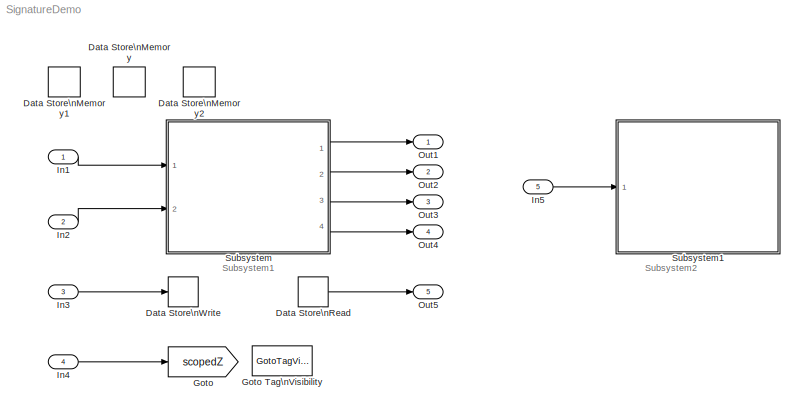
MODEL SignatureDemo
KIND model
BLOCK [DataStoreMemory] Data Store\nMemory
  DataStoreName = dsB
  ReadBeforeWriteMsg = warning
  SID = 5
  WriteAfterReadMsg = warning
  WriteAfterWriteMsg = warning
BLOCK [DataStoreMemory] Data Store\nMemory1
  DataStoreName = dsA
  ReadBeforeWriteMsg = warning
  SID = 6
  WriteAfterReadMsg = warning
  WriteAfterWriteMsg = warning
BLOCK [DataStoreMemory] Data Store\nMemory2
  DataStoreName = dsC
  ReadBeforeWriteMsg = warning
  SID = 77
  WriteAfterReadMsg = warning
  WriteAfterWriteMsg = warning
BLOCK [DataStoreRead] Data Store\nRead
  DataStoreName = dsA
  Ports = [0, 1]
  SID = 7
BLOCK [DataStoreWrite] Data Store\nWrite
  DataStoreName = dsB
  Ports = [1]
  SID = 8
BLOCK [Goto] Goto
  GotoTag = scopedZ
  SID = 9
  TagVisibility = scoped
BLOCK [GotoTagVisibility] Goto Tag\nVisibility
  GotoTag = scopedZ
  SID = 10
BLOCK [Inport] In1
  IconDisplay = Port number
  SID = 1
BLOCK [Inport] In2
  IconDisplay = Port number
  Port = 2
  SID = 2
BLOCK [Inport] In3
  IconDisplay = Port number
  Port = 3
  SID = 3
BLOCK [Inport] In4
  IconDisplay = Port number
  Port = 4
  SID = 4
BLOCK [Inport] In5
  IconDisplay = Port number
  Port = 5
  SID = 82
BLOCK [Outport] Out1
  IconDisplay = Port number
  SID = 72
BLOCK [Outport] Out2
  IconDisplay = Port number
  Port = 2
  SID = 73
BLOCK [Outport] Out3
  IconDisplay = Port number
  Port = 3
  SID = 74
BLOCK [Outport] Out4
  IconDisplay = Port number
  Port = 4
  SID = 75
BLOCK [Outport] Out5
  IconDisplay = Port number
  Port = 5
  SID = 76
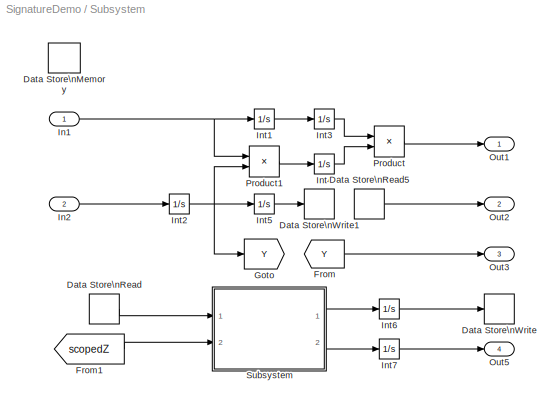
BLOCK [SubSystem] Subsystem
  FunctionWithSeparateData = off
  MaskHideContents = off
  MinAlgLoopOccurrences = off
  Opaque = off
  Ports = [2, 4]
  PropExecContextOutsideSubsystem = off
  RTWSystemCode = Auto
  RequestExecContextInheritance = off
  SID = 11
BLOCK [DataStoreMemory] Subsystem/Data Store\nMemory
  DataStoreName = dsD
  ReadBeforeWriteMsg = warning
  SID = 14
  WriteAfterReadMsg = warning
  WriteAfterWriteMsg = warning
BLOCK [DataStoreRead] Subsystem/Data Store\nRead
  DataStoreName = dsB
  Ports = [0, 1]
  SID = 15
BLOCK [DataStoreRead] Subsystem/Data Store\nRead5
  DataStoreName = dsD
  Ports = [0, 1]
  SID = 20
BLOCK [DataStoreWrite] Subsystem/Data Store\nWrite
  DataStoreName = dsA
  Ports = [1]
  SID = 21
BLOCK [DataStoreWrite] Subsystem/Data Store\nWrite1
  DataStoreName = dsD
  Ports = [1]
  SID = 22
BLOCK [From] Subsystem/From
  GotoTag = Y
  SID = 23
BLOCK [From] Subsystem/From1
  GotoTag = scopedZ
  SID = 24
BLOCK [Goto] Subsystem/Goto
  GotoTag = Y
  SID = 33
  TagVisibility = local
BLOCK [Inport] Subsystem/In1
  IconDisplay = Port number
  SID = 12
BLOCK [Inport] Subsystem/In2
  IconDisplay = Port number
  Port = 2
  SID = 13
BLOCK [Integrator] Subsystem/Int1
  Ports = [1, 1]
  SID = 40
BLOCK [Integrator] Subsystem/Int2
  Ports = [1, 1]
  SID = 41
BLOCK [Integrator] Subsystem/Int3
  Ports = [1, 1]
  SID = 42
BLOCK [Integrator] Subsystem/Int4
  Ports = [1, 1]
  SID = 43
BLOCK [Integrator] Subsystem/Int5
  Ports = [1, 1]
  SID = 44
BLOCK [Integrator] Subsystem/Int6
  Ports = [1, 1]
  SID = 45
BLOCK [Integrator] Subsystem/Int7
  Ports = [1, 1]
  SID = 46
BLOCK [Outport] Subsystem/Out1
  IconDisplay = Port number
  SID = 68
BLOCK [Outport] Subsystem/Out2
  IconDisplay = Port number
  Port = 2
  SID = 69
BLOCK [Outport] Subsystem/Out3
  IconDisplay = Port number
  Port = 3
  SID = 70
BLOCK [Outport] Subsystem/Out5
  IconDisplay = Port number
  Port = 4
  SID = 71
BLOCK [Product] Subsystem/Product
  InputSameDT = off
  OutDataTypeStr = Inherit: Inherit via internal rule
  Ports = [2, 1]
  SID = 47
  SaturateOnIntegerOverflow = off
BLOCK [Product] Subsystem/Product1
  InputSameDT = off
  OutDataTypeStr = Inherit: Inherit via internal rule
  Ports = [2, 1]
  SID = 48
  SaturateOnIntegerOverflow = off
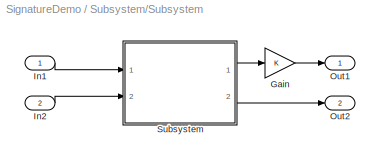
BLOCK [SubSystem] Subsystem/Subsystem
  FunctionWithSeparateData = off
  MaskHideContents = off
  MinAlgLoopOccurrences = off
  Opaque = off
  Ports = [2, 2]
  PropExecContextOutsideSubsystem = off
  RTWSystemCode = Auto
  RequestExecContextInheritance = off
  SID = 49
BLOCK [Gain] Subsystem/Subsystem/Gain
  OutDataTypeStr = Inherit: Inherit via internal rule
  ParamDataTypeStr = Inherit: Inherit via internal rule
  SID = 52
  SaturateOnIntegerOverflow = off
BLOCK [Inport] Subsystem/Subsystem/In1
  IconDisplay = Port number
  SID = 50
BLOCK [Inport] Subsystem/Subsystem/In2
  IconDisplay = Port number
  Port = 2
  SID = 51
BLOCK [Outport] Subsystem/Subsystem/Out1
  IconDisplay = Port number
  SID = 60
BLOCK [Outport] Subsystem/Subsystem/Out2
  IconDisplay = Port number
  Port = 2
  SID = 61
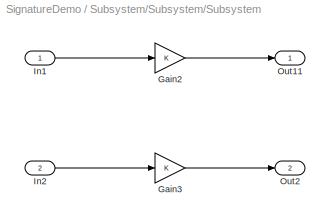
BLOCK [SubSystem] Subsystem/Subsystem/Subsystem
  FunctionWithSeparateData = off
  MaskHideContents = off
  MinAlgLoopOccurrences = off
  Opaque = off
  Ports = [2, 2]
  PropExecContextOutsideSubsystem = off
  RTWSystemCode = Auto
  RequestExecContextInheritance = off
  SID = 53
BLOCK [Gain] Subsystem/Subsystem/Subsystem/Gain2
  OutDataTypeStr = Inherit: Inherit via internal rule
  ParamDataTypeStr = Inherit: Inherit via internal rule
  SID = 56
  SaturateOnIntegerOverflow = off
BLOCK [Gain] Subsystem/Subsystem/Subsystem/Gain3
  OutDataTypeStr = Inherit: Inherit via internal rule
  ParamDataTypeStr = Inherit: Inherit via internal rule
  SID = 57
  SaturateOnIntegerOverflow = off
BLOCK [Inport] Subsystem/Subsystem/Subsystem/In1
  IconDisplay = Port number
  SID = 54
BLOCK [Inport] Subsystem/Subsystem/Subsystem/In2
  IconDisplay = Port number
  Port = 2
  SID = 55
BLOCK [Outport] Subsystem/Subsystem/Subsystem/Out11
  IconDisplay = Port number
  SID = 58
BLOCK [Outport] Subsystem/Subsystem/Subsystem/Out2
  IconDisplay = Port number
  Port = 2
  SID = 59
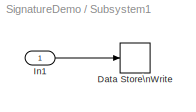
BLOCK [SubSystem] Subsystem1
  FunctionWithSeparateData = off
  MaskHideContents = off
  MinAlgLoopOccurrences = off
  Opaque = off
  Ports = [1]
  PropExecContextOutsideSubsystem = off
  RTWSystemCode = Auto
  RequestExecContextInheritance = off
  SID = 78
  ShowPortLabels = none
BLOCK [DataStoreWrite] Subsystem1/Data Store\nWrite
  DataStoreName = dsC
  Ports = [1]
  SID = 81
BLOCK [Inport] Subsystem1/In1
  IconDisplay = Port number
  SID = 79
ANNOTATION (root): Subsystem1
ANNOTATION (root): Subsystem2
LINE Data Store\nRead:1 -> Out5:1
LINE In1:1 -> Subsystem:1
LINE In2:1 -> Subsystem:2
LINE In3:1 -> Data Store\nWrite:1
LINE In4:1 -> Goto:1
LINE In5:1 -> Subsystem1:1
LINE Subsystem/Data Store\nRead5:1 -> Subsystem/Out2:1
LINE Subsystem/Data Store\nRead:1 -> Subsystem/Subsystem:1
LINE Subsystem/From1:1 -> Subsystem/Subsystem:2
LINE Subsystem/From:1 -> Subsystem/Out3:1
NET Subsystem/In1:1 -> Subsystem/Int1:1, Subsystem/Product1:1
LINE Subsystem/In2:1 -> Subsystem/Int2:1
LINE Subsystem/Int1:1 -> Subsystem/Int3:1
NET Subsystem/Int2:1 -> Subsystem/Goto:1, Subsystem/Int5:1, Subsystem/Product1:2
LINE Subsystem/Int3:1 -> Subsystem/Product:1
LINE Subsystem/Int4:1 -> Subsystem/Product:2
LINE Subsystem/Int5:1 -> Subsystem/Data Store\nWrite1:1
LINE Subsystem/Int6:1 -> Subsystem/Data Store\nWrite:1
LINE Subsystem/Int7:1 -> Subsystem/Out5:1
LINE Subsystem/Product1:1 -> Subsystem/Int4:1
LINE Subsystem/Product:1 -> Subsystem/Out1:1
LINE Subsystem/Subsystem/Gain:1 -> Subsystem/Subsystem/Out1:1
LINE Subsystem/Subsystem/In1:1 -> Subsystem/Subsystem/Subsystem:1
LINE Subsystem/Subsystem/In2:1 -> Subsystem/Subsystem/Subsystem:2
LINE Subsystem/Subsystem/Subsystem/Gain2:1 -> Subsystem/Subsystem/Subsystem/Out11:1
LINE Subsystem/Subsystem/Subsystem/Gain3:1 -> Subsystem/Subsystem/Subsystem/Out2:1
LINE Subsystem/Subsystem/Subsystem/In1:1 -> Subsystem/Subsystem/Subsystem/Gain2:1
LINE Subsystem/Subsystem/Subsystem/In2:1 -> Subsystem/Subsystem/Subsystem/Gain3:1
LINE Subsystem/Subsystem/Subsystem:1 -> Subsystem/Subsystem/Gain:1
LINE Subsystem/Subsystem/Subsystem:2 -> Subsystem/Subsystem/Out2:1
LINE Subsystem/Subsystem:1 -> Subsystem/Int6:1
LINE Subsystem/Subsystem:2 -> Subsystem/Int7:1
LINE Subsystem1/In1:1 -> Subsystem1/Data Store\nWrite:1
LINE Subsystem:1 -> Out1:1
LINE Subsystem:2 -> Out2:1
LINE Subsystem:3 -> Out3:1
LINE Subsystem:4 -> Out4:1
note: NET lines group one-source signal fan-out (src -> all destinations, sorted); 1:1 wires keep LINE
